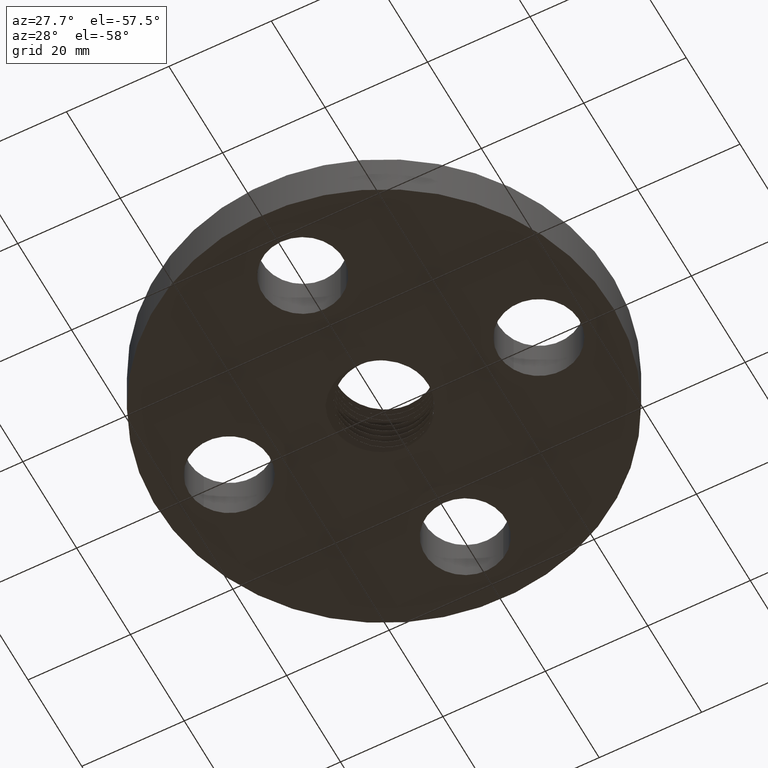
[diagram: clean part render]
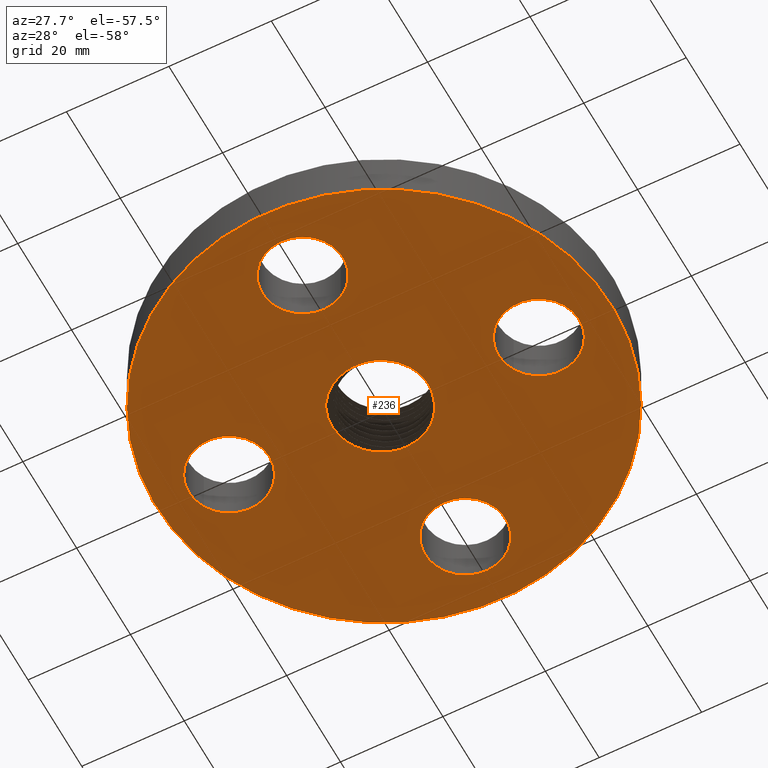
[diagram: same view with one face highlighted and labeled with its STEP entity id]
A machine part, auxiliary view. The second image highlights one B-rep face of the part: STEP entity #236.
In plain terms, the highlighted planar face has unit normal (0, 0, -1).
Its self-contained STEP definition (entity closure, byte-faithful):
#38=AXIS2_PLACEMENT_3D('Plane Axis2P3D',#35,#36,#37) ;
#42=AXIS2_PLACEMENT_3D('Circle Axis2P3D',#40,#41,$) ;
#51=AXIS2_PLACEMENT_3D('Circle Axis2P3D',#49,#50,$) ;
#152=AXIS2_PLACEMENT_3D('Circle Axis2P3D',#150,#151,$) ;
#166=AXIS2_PLACEMENT_3D('Circle Axis2P3D',#164,#165,$) ;
#175=AXIS2_PLACEMENT_3D('Circle Axis2P3D',#173,#174,$) ;
#184=AXIS2_PLACEMENT_3D('Circle Axis2P3D',#182,#183,$) ;
#193=AXIS2_PLACEMENT_3D('Circle Axis2P3D',#191,#192,$) ;
#202=AXIS2_PLACEMENT_3D('Circle Axis2P3D',#200,#201,$) ;
#211=AXIS2_PLACEMENT_3D('Circle Axis2P3D',#209,#210,$) ;
#220=AXIS2_PLACEMENT_3D('Circle Axis2P3D',#218,#219,$) ;
#229=AXIS2_PLACEMENT_3D('Circle Axis2P3D',#227,#228,$) ;
#35=CARTESIAN_POINT('Axis2P3D Location',(0.,0.,0.)) ;
#40=CARTESIAN_POINT('Axis2P3D Location',(0.,0.,0.)) ;
#44=CARTESIAN_POINT('Vertex',(0.838994692561,1.53576948331,1.39870617276E-016)) ;
#46=CARTESIAN_POINT('Vertex',(-0.838994692561,-1.53576948331,1.39870617276E-016)) ;
#49=CARTESIAN_POINT('Axis2P3D Location',(0.,0.,0.)) ;
#59=CARTESIAN_POINT('Control Point',(3.6597082335E-005,0.362568994628,0.)) ;
#60=CARTESIAN_POINT('Control Point',(0.0390867578566,0.360698933128,0.)) ;
#61=CARTESIAN_POINT('Control Point',(0.0777590798277,0.353565553232,0.)) ;
#62=CARTESIAN_POINT('Control Point',(0.115094696839,0.341236333581,0.)) ;
#63=CARTESIAN_POINT('Control Point',(0.18525315577,0.306854022223,0.)) ;
#64=CARTESIAN_POINT('Control Point',(0.243211709956,0.255262249613,0.)) ;
#65=CARTESIAN_POINT('Control Point',(0.268371456854,0.225702640801,0.)) ;
#66=CARTESIAN_POINT('Control Point',(0.291439187227,0.189430561757,0.)) ;
#67=CARTESIAN_POINT('Control Point',(0.308475541289,0.150577936756,0.)) ;
#68=CARTESIAN_POINT('Control Point',(0.310167964861,0.146544536813,0.)) ;
#69=CARTESIAN_POINT('Control Point',(0.311794475155,0.142488038412,0.)) ;
#70=CARTESIAN_POINT('Control Point',(0.313355248574,0.138408270671,0.)) ;
#71=CARTESIAN_POINT('Vertex',(3.65970823354E-005,0.362568994628,5.46369598733E-019)) ;
#73=CARTESIAN_POINT('Vertex',(0.313355549535,0.138408414417,-2.74536258399E-007)) ;
#77=CARTESIAN_POINT('Control Point',(-0.177954018424,0.325800572179,0.)) ;
#78=CARTESIAN_POINT('Control Point',(-0.144742451884,0.341978424674,0.)) ;
#79=CARTESIAN_POINT('Control Point',(-0.109610280943,0.353974825413,0.)) ;
#80=CARTESIAN_POINT('Control Point',(-0.0732375412143,0.361470827155,0.)) ;
#81=CARTESIAN_POINT('Control Point',(-0.0364356994979,0.36431560552,0.)) ;
#82=CARTESIAN_POINT('Control Point',(3.65970823355E-005,0.362568994628,0.)) ;
#83=CARTESIAN_POINT('Vertex',(-0.177954018424,0.325800572179,1.09273919747E-018)) ;
#87=CARTESIAN_POINT('Control Point',(-0.350291910302,-0.1897623039,0.)) ;
#88=CARTESIAN_POINT('Control Point',(-0.361049606663,-0.167661622498,0.)) ;
#89=CARTESIAN_POINT('Control Point',(-0.370085918087,-0.144761821015,0.)) ;
#90=CARTESIAN_POINT('Control Point',(-0.377317821298,-0.12123834466,0.)) ;
#91=CARTESIAN_POINT('Control Point',(-0.391633295333,-0.0573806369723,0.)) ;
#92=CARTESIAN_POINT('Control Point',(-0.39253856501,0.00812282155062,0.)) ;
#93=CARTESIAN_POINT('Control Point',(-0.387751361053,0.0487900551266,0.)) ;
#94=CARTESIAN_POINT('Control Point',(-0.36774133255,0.12768480721,0.)) ;
#95=CARTESIAN_POINT('Control Point',(-0.328290409644,0.198358910824,0.)) ;
#96=CARTESIAN_POINT('Control Point',(-0.304063838923,0.230790529969,0.)) ;
#97=CARTESIAN_POINT('Control Point',(-0.26474928875,0.270972700312,0.)) ;
#98=CARTESIAN_POINT('Control Point',(-0.219245650478,0.302906975308,0.)) ;
#99=CARTESIAN_POINT('Control Point',(-0.205865522635,0.311278281151,0.)) ;
#100=CARTESIAN_POINT('Control Point',(-0.192083584154,0.318917848621,0.)) ;
#101=CARTESIAN_POINT('Control Point',(-0.177954018424,0.325800572179,0.)) ;
#102=CARTESIAN_POINT('Vertex',(-0.350291910302,-0.1897623039,-9.28828317846E-018)) ;
#106=CARTESIAN_POINT('Control Point',(-0.350291910302,-0.1897623039,0.)) ;
#107=CARTESIAN_POINT('Control Point',(-0.329069921638,-0.224807709711,0.)) ;
#108=CARTESIAN_POINT('Control Point',(-0.303403184815,-0.257013410806,0.)) ;
#109=CARTESIAN_POINT('Control Point',(-0.273775600365,-0.285617564446,0.)) ;
#110=CARTESIAN_POINT('Control Point',(-0.214572812641,-0.329464308741,0.)) ;
#111=CARTESIAN_POINT('Control Point',(-0.147403600546,-0.358187004022,0.)) ;
#112=CARTESIAN_POINT('Control Point',(-0.116391271531,-0.367745555984,0.)) ;
#113=CARTESIAN_POINT('Control Point',(-0.0742143193771,-0.37601450188,0.)) ;
#114=CARTESIAN_POINT('Control Point',(-0.0316485070752,-0.378314547186,0.)) ;
#115=CARTESIAN_POINT('Control Point',(-0.0210765841485,-0.378516549361,0.)) ;
#116=CARTESIAN_POINT('Control Point',(-0.0105152406908,-0.378349713809,0.)) ;
#117=CARTESIAN_POINT('Control Point',(1.81324917422E-005,-0.377815324703,0.)) ;
#118=CARTESIAN_POINT('Vertex',(1.8132491743E-005,-0.377815324703,-5.46369598733E-019)) ;
#122=CARTESIAN_POINT('Control Point',(1.8132491743E-005,-0.377815324703,0.)) ;
#123=CARTESIAN_POINT('Control Point',(0.0338684663992,-0.376097997353,0.)) ;
#124=CARTESIAN_POINT('Control Point',(0.0674297795507,-0.370584804104,0.)) ;
#125=CARTESIAN_POINT('Control Point',(0.100142055649,-0.36131484621,0.)) ;
#126=CARTESIAN_POINT('Control Point',(0.134837254848,-0.347067212905,0.)) ;
#127=CARTESIAN_POINT('Control Point',(0.167168627078,-0.328777209849,0.)) ;
#128=CARTESIAN_POINT('Control Point',(0.17032640289,-0.326938778955,0.)) ;
#129=CARTESIAN_POINT('Control Point',(0.173459216882,-0.325062469617,0.)) ;
#130=CARTESIAN_POINT('Control Point',(0.176567252488,-0.323148230384,0.)) ;
#131=CARTESIAN_POINT('Vertex',(0.176567252488,-0.323148230384,-3.2782175924E-018)) ;
#135=CARTESIAN_POINT('Control Point',(0.176567252488,-0.323148230384,0.)) ;
#136=CARTESIAN_POINT('Control Point',(0.210111996243,-0.302488021597,0.)) ;
#137=CARTESIAN_POINT('Control Point',(0.240770604195,-0.277409338412,0.)) ;
#138=CARTESIAN_POINT('Control Point',(0.267743949888,-0.24843416834,0.)) ;
#139=CARTESIAN_POINT('Control Point',(0.313054564418,-0.18414217954,0.)) ;
#140=CARTESIAN_POINT('Control Point',(0.339382038809,-0.110660914291,0.)) ;
#141=CARTESIAN_POINT('Control Point',(0.347390431384,-0.0724530074997,0.)) ;
#142=CARTESIAN_POINT('Control Point',(0.351297991562,-0.0157182115069,0.)) ;
#143=CARTESIAN_POINT('Control Point',(0.343905647413,0.0399296737412,0.)) ;
#144=CARTESIAN_POINT('Control Point',(0.340414916888,0.057443492091,0.)) ;
#145=CARTESIAN_POINT('Control Point',(0.335810480894,0.0746493764172,0.)) ;
#146=CARTESIAN_POINT('Control Point',(0.330128064169,0.0914532744305,0.)) ;
#147=CARTESIAN_POINT('Vertex',(0.3301285761,0.0914534051395,3.07612108209E-007)) ;
#150=CARTESIAN_POINT('Axis2P3D Location',(-3.49676543189E-017,1.74838271595E-017,0.)) ;
#164=CARTESIAN_POINT('Axis2P3D Location',(1.19,-1.39870617276E-016,0.)) ;
#168=CARTESIAN_POINT('Vertex',(1.46205059419,-0.148621916968,0.)) ;
#170=CARTESIAN_POINT('Vertex',(0.917949405818,0.148621916968,0.)) ;
#173=CARTESIAN_POINT('Axis2P3D Location',(1.19,1.39870617276E-016,0.)) ;
#182=CARTESIAN_POINT('Axis2P3D Location',(6.99353086378E-017,-1.19,0.)) ;
#186=CARTESIAN_POINT('Vertex',(0.148621916968,-0.917949405818,0.)) ;
#188=CARTESIAN_POINT('Vertex',(-0.148621916968,-1.46205059419,0.)) ;
#191=CARTESIAN_POINT('Axis2P3D Location',(-2.09805925913E-016,-1.19,0.)) ;
#200=CARTESIAN_POINT('Axis2P3D Location',(-1.19,-6.99353086378E-017,0.)) ;
#204=CARTESIAN_POINT('Vertex',(-0.917949405818,-0.148621916968,0.)) ;
#206=CARTESIAN_POINT('Vertex',(-1.46205059419,0.148621916968,0.)) ;
#209=CARTESIAN_POINT('Axis2P3D Location',(-1.19,-2.09805925913E-016,0.)) ;
#218=CARTESIAN_POINT('Axis2P3D Location',(-2.09805925913E-016,1.19,0.)) ;
#222=CARTESIAN_POINT('Vertex',(-0.148621916968,0.917949405818,0.)) ;
#224=CARTESIAN_POINT('Vertex',(0.148621916968,1.46205059419,0.)) ;
#227=CARTESIAN_POINT('Axis2P3D Location',(6.99353086378E-017,1.19,0.)) ;
#36=DIRECTION('Axis2P3D Direction',(0.,0.,-0.0393700787402)) ;
#37=DIRECTION('Axis2P3D XDirection',(0.0393700787402,0.,0.)) ;
#41=DIRECTION('Axis2P3D Direction',(0.,0.,-0.0393700787402)) ;
#50=DIRECTION('Axis2P3D Direction',(0.,0.,-0.0393700787402)) ;
#151=DIRECTION('Axis2P3D Direction',(0.,0.,-0.0393700787402)) ;
#165=DIRECTION('Axis2P3D Direction',(0.,0.,-0.0393700787402)) ;
#174=DIRECTION('Axis2P3D Direction',(0.,0.,-0.0393700787402)) ;
#183=DIRECTION('Axis2P3D Direction',(0.,0.,-0.0393700787402)) ;
#192=DIRECTION('Axis2P3D Direction',(0.,0.,-0.0393700787402)) ;
#201=DIRECTION('Axis2P3D Direction',(0.,0.,-0.0393700787402)) ;
#210=DIRECTION('Axis2P3D Direction',(0.,0.,-0.0393700787402)) ;
#219=DIRECTION('Axis2P3D Direction',(0.,0.,-0.0393700787402)) ;
#228=DIRECTION('Axis2P3D Direction',(0.,0.,-0.0393700787402)) ;
#55=ORIENTED_EDGE('',*,*,#48,.T.) ;
#56=ORIENTED_EDGE('',*,*,#53,.T.) ;
#156=ORIENTED_EDGE('',*,*,#75,.F.) ;
#157=ORIENTED_EDGE('',*,*,#85,.F.) ;
#158=ORIENTED_EDGE('',*,*,#104,.F.) ;
#159=ORIENTED_EDGE('',*,*,#120,.T.) ;
#160=ORIENTED_EDGE('',*,*,#133,.T.) ;
#161=ORIENTED_EDGE('',*,*,#149,.T.) ;
#162=ORIENTED_EDGE('',*,*,#154,.F.) ;
#179=ORIENTED_EDGE('',*,*,#172,.F.) ;
#180=ORIENTED_EDGE('',*,*,#177,.F.) ;
#197=ORIENTED_EDGE('',*,*,#190,.F.) ;
#198=ORIENTED_EDGE('',*,*,#195,.F.) ;
#215=ORIENTED_EDGE('',*,*,#208,.F.) ;
#216=ORIENTED_EDGE('',*,*,#213,.F.) ;
#233=ORIENTED_EDGE('',*,*,#226,.F.) ;
#234=ORIENTED_EDGE('',*,*,#231,.F.) ;
#163=FACE_BOUND('',#155,.T.) ;
#181=FACE_BOUND('',#178,.T.) ;
#199=FACE_BOUND('',#196,.T.) ;
#217=FACE_BOUND('',#214,.T.) ;
#235=FACE_BOUND('',#232,.T.) ;
#236=ADVANCED_FACE('PartBody',(#57,#163,#181,#199,#217,#235),#39,.T.) ;
#58=B_SPLINE_CURVE_WITH_KNOTS('',5,(#59,#60,#61,#62,#63,#64,#65,#66,#67,#68,#69,#70),.UNSPECIFIED.,.F.,.U.,(6,3,3,6),(0.,7.09901146596,14.2040331262,15.0207759664),.UNSPECIFIED.) ;
#76=B_SPLINE_CURVE_WITH_KNOTS('',5,(#77,#78,#79,#80,#81,#82),.UNSPECIFIED.,.F.,.U.,(6,6),(0.,6.63037607172),.UNSPECIFIED.) ;
#86=B_SPLINE_CURVE_WITH_KNOTS('',5,(#87,#88,#89,#90,#91,#92,#93,#94,#95,#96,#97,#98,#99,#100,#101),.UNSPECIFIED.,.F.,.U.,(6,3,3,3,6),(0.,4.26830076082,11.3795633359,18.4879065536,21.3087411115),.UNSPECIFIED.) ;
#105=B_SPLINE_CURVE_WITH_KNOTS('',5,(#106,#107,#108,#109,#110,#111,#112,#113,#114,#115,#116,#117),.UNSPECIFIED.,.F.,.U.,(6,3,3,6),(0.,7.11488900581,12.8061930246,14.6851993071),.UNSPECIFIED.) ;
#121=B_SPLINE_CURVE_WITH_KNOTS('',5,(#122,#123,#124,#125,#126,#127,#128,#129,#130),.UNSPECIFIED.,.F.,.U.,(6,3,6),(0.,6.03842558096,6.69724554313),.UNSPECIFIED.) ;
#134=B_SPLINE_CURVE_WITH_KNOTS('',5,(#135,#136,#137,#138,#139,#140,#141,#142,#143,#144,#145,#146),.UNSPECIFIED.,.F.,.U.,(6,3,3,6),(0.,7.11058353543,14.2301537665,17.5570020225),.UNSPECIFIED.) ;
#43=CIRCLE('generated circle',#42,1.75000000001) ;
#52=CIRCLE('generated circle',#51,1.75000000001) ;
#153=CIRCLE('generated circle',#152,0.342561812646) ;
#167=CIRCLE('generated circle',#166,0.310000000001) ;
#176=CIRCLE('generated circle',#175,0.310000000001) ;
#185=CIRCLE('generated circle',#184,0.310000000001) ;
#194=CIRCLE('generated circle',#193,0.310000000001) ;
#203=CIRCLE('generated circle',#202,0.310000000001) ;
#212=CIRCLE('generated circle',#211,0.310000000001) ;
#221=CIRCLE('generated circle',#220,0.310000000001) ;
#230=CIRCLE('generated circle',#229,0.310000000001) ;
#48=EDGE_CURVE('',#45,#47,#43,.T.) ;
#53=EDGE_CURVE('',#47,#45,#52,.T.) ;
#75=EDGE_CURVE('',#72,#74,#58,.T.) ;
#85=EDGE_CURVE('',#84,#72,#76,.T.) ;
#104=EDGE_CURVE('',#103,#84,#86,.T.) ;
#120=EDGE_CURVE('',#103,#119,#105,.T.) ;
#133=EDGE_CURVE('',#119,#132,#121,.T.) ;
#149=EDGE_CURVE('',#132,#148,#134,.T.) ;
#154=EDGE_CURVE('',#74,#148,#153,.T.) ;
#172=EDGE_CURVE('',#169,#171,#167,.T.) ;
#177=EDGE_CURVE('',#171,#169,#176,.T.) ;
#190=EDGE_CURVE('',#187,#189,#185,.T.) ;
#195=EDGE_CURVE('',#189,#187,#194,.T.) ;
#208=EDGE_CURVE('',#205,#207,#203,.T.) ;
#213=EDGE_CURVE('',#207,#205,#212,.T.) ;
#226=EDGE_CURVE('',#223,#225,#221,.T.) ;
#231=EDGE_CURVE('',#225,#223,#230,.T.) ;
#54=EDGE_LOOP('',(#55,#56)) ;
#155=EDGE_LOOP('',(#156,#157,#158,#159,#160,#161,#162)) ;
#178=EDGE_LOOP('',(#179,#180)) ;
#196=EDGE_LOOP('',(#197,#198)) ;
#214=EDGE_LOOP('',(#215,#216)) ;
#232=EDGE_LOOP('',(#233,#234)) ;
#57=FACE_OUTER_BOUND('',#54,.T.) ;
#39=PLANE('',#38) ;
#45=VERTEX_POINT('',#44) ;
#47=VERTEX_POINT('',#46) ;
#72=VERTEX_POINT('',#71) ;
#74=VERTEX_POINT('',#73) ;
#84=VERTEX_POINT('',#83) ;
#103=VERTEX_POINT('',#102) ;
#119=VERTEX_POINT('',#118) ;
#132=VERTEX_POINT('',#131) ;
#148=VERTEX_POINT('',#147) ;
#169=VERTEX_POINT('',#168) ;
#171=VERTEX_POINT('',#170) ;
#187=VERTEX_POINT('',#186) ;
#189=VERTEX_POINT('',#188) ;
#205=VERTEX_POINT('',#204) ;
#207=VERTEX_POINT('',#206) ;
#223=VERTEX_POINT('',#222) ;
#225=VERTEX_POINT('',#224) ;